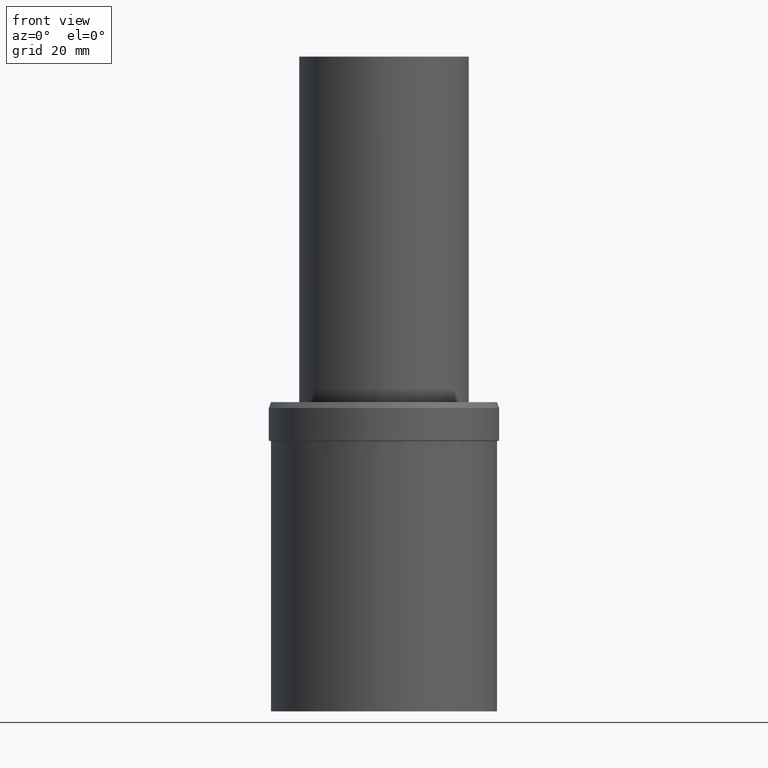
[diagram: clean part render]
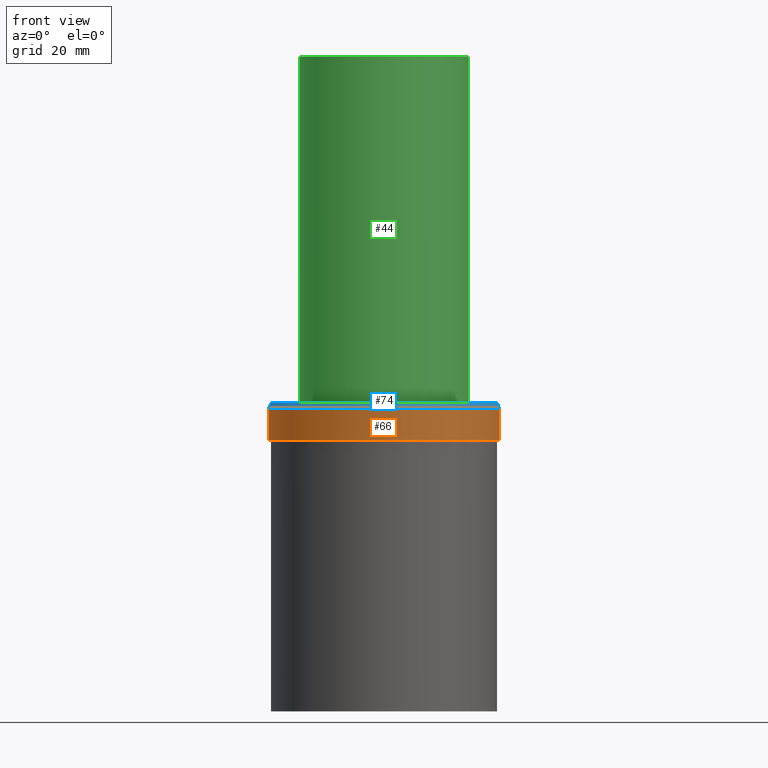
[diagram: same view with three faces highlighted in distinct colors, each labeled with its STEP entity id]
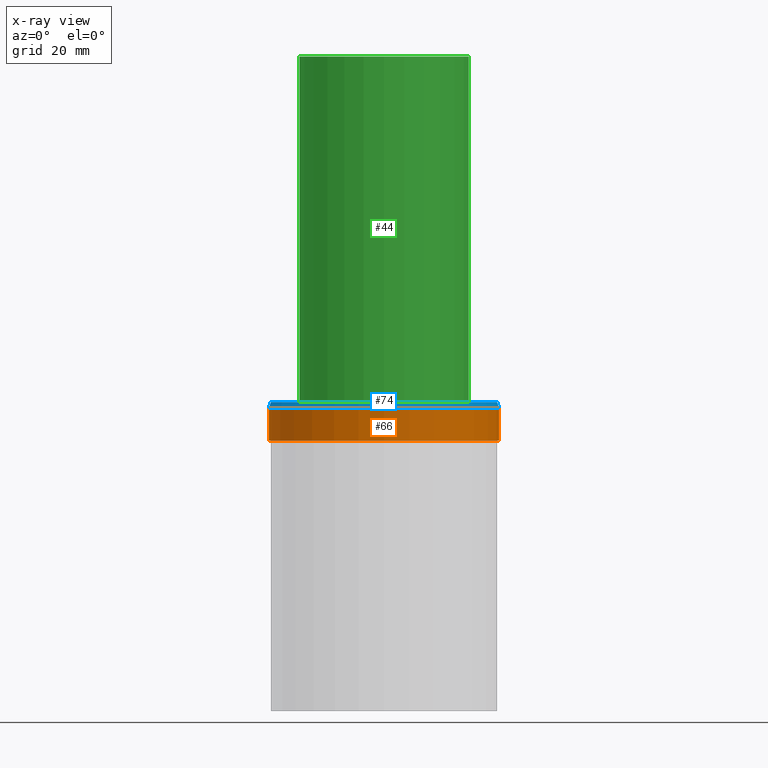
[diagram: x-ray of the same camera — body ghosted, the three highlighted faces saturated]
A machine part, front view with three faces highlighted in distinct colors.
The next image is the same camera in x-ray (body ghosted, the three faces saturated) — at least one of them is partly hidden behind the body in this view.
Their STEP definitions:

[orange] entity #66 — the highlighted cylindrical surface (bore or boss wall) has radius 27 mm, axis along (0, 0, -1).
#49=EDGE_CURVE('Unnamed[1]',#112,#112,#113,.T.);
#66=ADVANCED_FACE('Unnamed[1]',(#136,#137),#138,.T.);
#76=EDGE_CURVE('Unnamed[1]',#151,#151,#152,.T.);
#112=VERTEX_POINT('',#184);
#113=CIRCLE('',#185,26.9999999999945);
#136=FACE_BOUND('',#215,.T.);
#137=FACE_BOUND('',#216,.T.);
#138=CYLINDRICAL_SURFACE('',#217,26.9999999999945);
#151=VERTEX_POINT('',#233);
#152=CIRCLE('',#234,26.9999999999945);
#184=CARTESIAN_POINT('',(-4.35522741122223E-015,26.9999999999945,71.1262612902677));
#185=AXIS2_PLACEMENT_3D('',#260,#261,#262);
#215=EDGE_LOOP('',(#286));
#216=EDGE_LOOP('',(#287));
#217=AXIS2_PLACEMENT_3D('',#288,#289,#290);
#233=CARTESIAN_POINT('',(-3.88825358729213E-015,26.9999999999945,63.4999999999883));
#234=AXIS2_PLACEMENT_3D('',#301,#302,#303);
#260=CARTESIAN_POINT('',(-4.35522741122223E-015,-8.71045482244446E-015,71.1262612902677));
#261=DIRECTION('',(6.12323399573677E-017,1.22464679914718E-016,-1.0));
#262=DIRECTION('',(-1.23259516440775E-032,1.0,1.22464679914718E-016));
#286=ORIENTED_EDGE('',*,*,#76,.F.);
#287=ORIENTED_EDGE('',*,*,#49,.T.);
#288=CARTESIAN_POINT('',(-4.12174049925718E-015,-8.24348099851436E-015,67.313130645128));
#289=DIRECTION('',(6.12323399573677E-017,1.22464679914718E-016,-1.0));
#290=DIRECTION('',(-1.23259516440775E-032,1.0,1.22464679914718E-016));
#301=CARTESIAN_POINT('',(-3.88825358729213E-015,-7.77650717458426E-015,63.4999999999883));
#302=DIRECTION('',(6.12323399573677E-017,1.22464679914718E-016,-1.0));
#303=DIRECTION('',(-1.23259516440775E-032,1.0,1.22464679914718E-016));

[blue] entity #74 — the highlighted conical surface has half-angle 20 deg.
#49=EDGE_CURVE('Unnamed[1]',#112,#112,#113,.T.);
#68=EDGE_CURVE('Unnamed[1]',#140,#140,#141,.T.);
#74=ADVANCED_FACE('Unnamed[1]',(#147,#148),#149,.T.);
#112=VERTEX_POINT('',#184);
#113=CIRCLE('',#185,26.9999999999945);
#140=VERTEX_POINT('',#220);
#141=CIRCLE('',#221,26.4999999999965);
#147=FACE_BOUND('',#228,.T.);
#148=FACE_BOUND('',#229,.T.);
#149=CONICAL_SURFACE('',#230,26.7499999999955,0.349065850398426);
#184=CARTESIAN_POINT('',(-4.35522741122223E-015,26.9999999999945,71.1262612902677));
#185=AXIS2_PLACEMENT_3D('',#260,#261,#262);
#220=CARTESIAN_POINT('',(-4.43934464690863E-015,26.4999999999965,72.4999999999914));
#221=AXIS2_PLACEMENT_3D('',#291,#292,#293);
#228=EDGE_LOOP('',(#296));
#229=EDGE_LOOP('',(#297));
#230=AXIS2_PLACEMENT_3D('',#298,#299,#300);
#260=CARTESIAN_POINT('',(-4.35522741122223E-015,-8.71045482244446E-015,71.1262612902677));
#261=DIRECTION('',(6.12323399573677E-017,1.22464679914718E-016,-1.0));
#262=DIRECTION('',(-1.23259516440775E-032,1.0,1.22464679914718E-016));
#291=CARTESIAN_POINT('',(-4.43934464690863E-015,-8.87868929381726E-015,72.4999999999914));
#292=DIRECTION('',(6.12323399573676E-017,1.22464679914719E-016,-1.0));
#293=DIRECTION('',(-1.23259516440799E-032,1.0,1.22464679914719E-016));
#296=ORIENTED_EDGE('',*,*,#49,.F.);
#297=ORIENTED_EDGE('',*,*,#68,.T.);
#298=CARTESIAN_POINT('',(-4.39728602906543E-015,-8.79457205813086E-015,71.8131306451295));
#299=DIRECTION('',(6.12323399573677E-017,1.22464679914719E-016,-1.0));
#300=DIRECTION('',(-1.2325951644077E-032,1.0,1.22464679914719E-016));

[green] entity #44 — the highlighted cylindrical surface (bore or boss wall) has radius 20 mm, axis along (0, 0, -1).
#44=ADVANCED_FACE('Unnamed[1]',(#103,#104),#105,.T.);
#58=EDGE_CURVE('Unnamed[1]',#125,#125,#126,.T.);
#63=EDGE_CURVE('Unnamed[1]',#132,#132,#133,.T.);
#103=FACE_BOUND('',#173,.T.);
#104=FACE_BOUND('',#174,.T.);
#105=CYLINDRICAL_SURFACE('',#175,20.0000000000027);
#125=VERTEX_POINT('',#201);
#126=CIRCLE('',#202,20.0000000000027);
#132=VERTEX_POINT('',#210);
#133=CIRCLE('',#211,20.0000000000027);
#173=EDGE_LOOP('',(#249));
#174=EDGE_LOOP('',(#250));
#175=AXIS2_PLACEMENT_3D('',#251,#252,#253);
#201=CARTESIAN_POINT('',(-9.39916418345535E-015,20.0000000000027,153.49999999999));
#202=AXIS2_PLACEMENT_3D('',#274,#275,#276);
#210=CARTESIAN_POINT('',(-4.43934464690863E-015,20.0000000000027,72.4999999999914));
#211=AXIS2_PLACEMENT_3D('',#282,#283,#284);
#249=ORIENTED_EDGE('',*,*,#63,.F.);
#250=ORIENTED_EDGE('',*,*,#58,.T.);
#251=CARTESIAN_POINT('',(-6.91925441518199E-015,-1.3838508830364E-014,112.999999999991));
#252=DIRECTION('',(6.12323399573677E-017,1.22464679914703E-016,-1.0));
#253=DIRECTION('',(-1.23259516440766E-032,1.0,1.22464679914703E-016));
#274=CARTESIAN_POINT('',(-9.39916418345535E-015,-1.87983283669107E-014,153.49999999999));
#275=DIRECTION('',(6.12323399573677E-017,1.22464679914703E-016,-1.0));
#276=DIRECTION('',(-1.23259516440766E-032,1.0,1.22464679914703E-016));
#282=CARTESIAN_POINT('',(-4.43934464690863E-015,-8.87868929381725E-015,72.4999999999914));
#283=DIRECTION('',(6.12323399573677E-017,1.22464679914703E-016,-1.0));
#284=DIRECTION('',(-1.23259516440766E-032,1.0,1.22464679914703E-016));